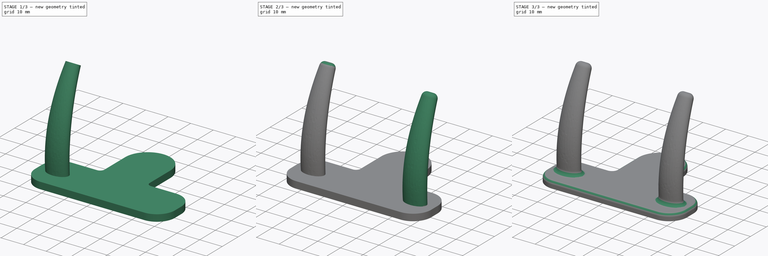
[diagram: build sequence overview — one tinted view per stage of 3, left to right]
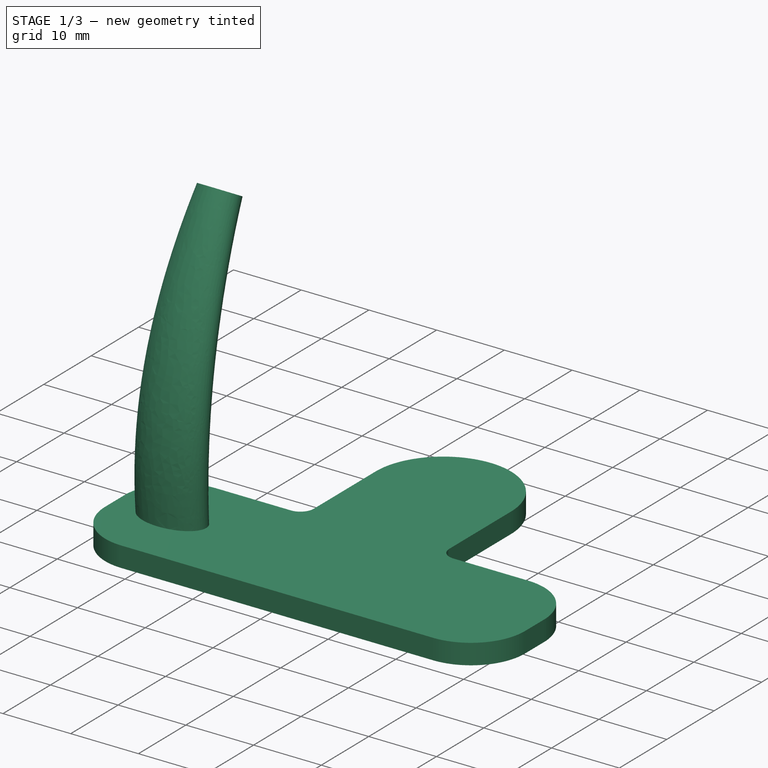
[diagram: stage 1 of 3 — iso view after this stage's code; geometry added in this stage tinted green]
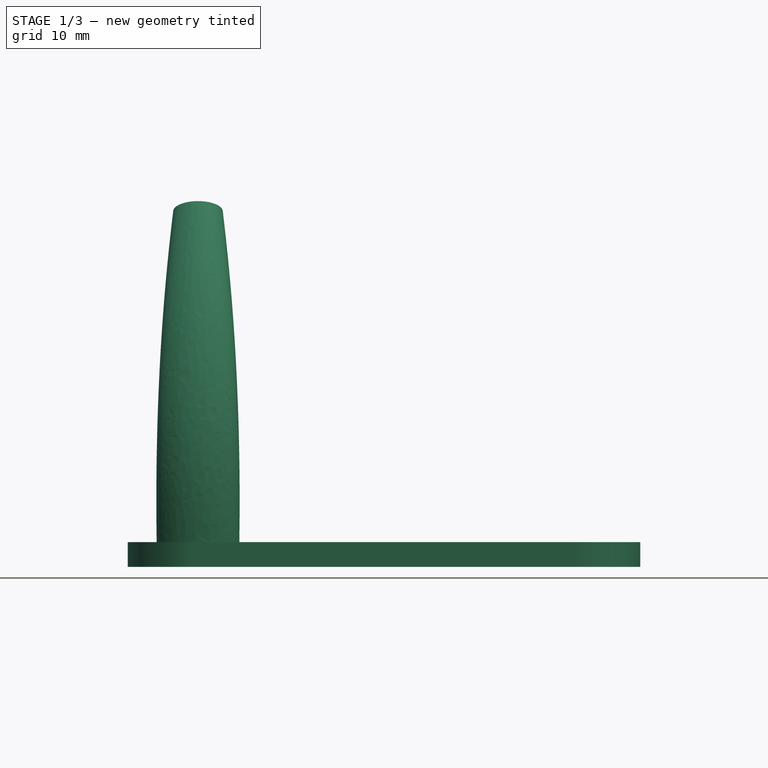
[diagram: stage 1 of 3 — front view after this stage's code; geometry added in this stage tinted green]
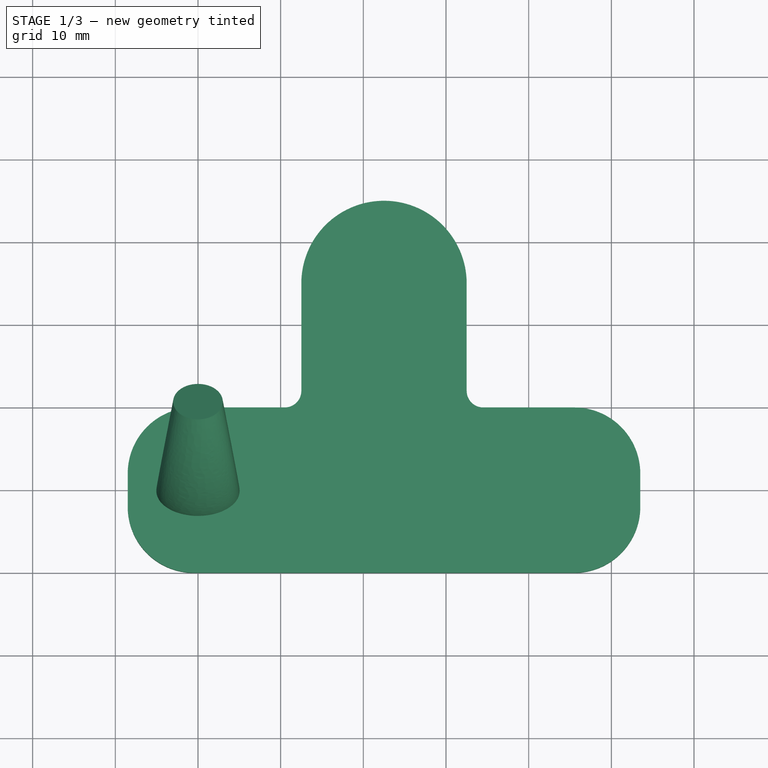
[diagram: stage 1 of 3 — top view after this stage's code; geometry added in this stage tinted green]
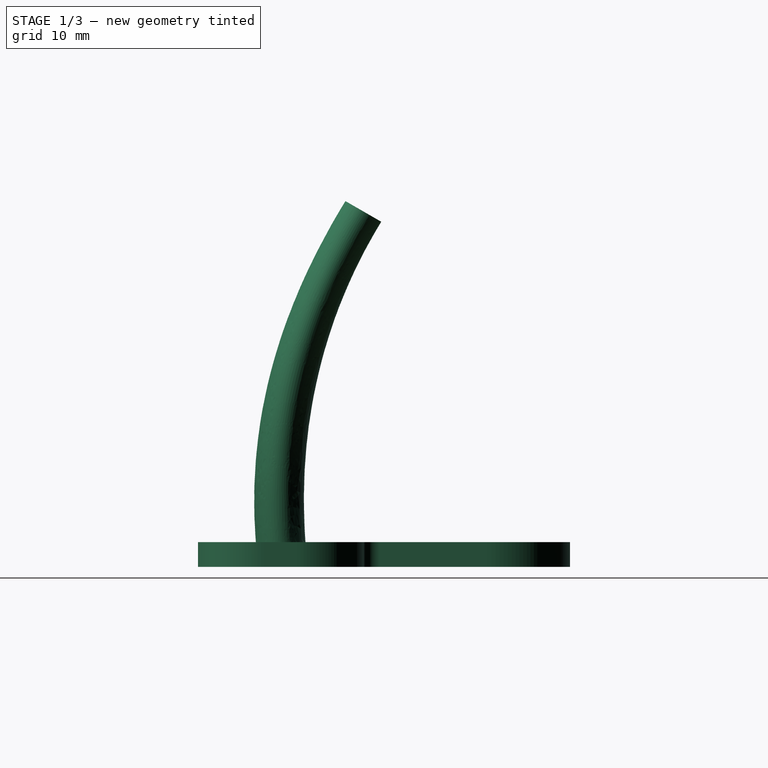
[diagram: stage 1 of 3 — right view after this stage's code; geometry added in this stage tinted green]
FCSTD DOCUMENT  (FreeCAD 0.16R)
Label: ShaverHook
License: All rights reserved
LicenseURL: http://en.wikipedia.org/wiki/All_rights_reserved
objects: Sketcher::SketchObject×4, PartDesign::Fillet×3, Part::Loft×1, Part::FeaturePython×1, PartDesign::Pad×1, Part::MultiFuse×1
note: 12 computed .brp shape members not serialized (recipe doc carries the construction recipe); baked Part::Feature solids carry a one-line shape summary decoded from their .brp

FEATURE [Sketcher::SketchObject] Sketch
  sketch-geometry (3):
    g0: Ellipse CenterX=0 CenterY=0 CenterZ=0 NormalX=0 NormalY=0 NormalZ=1 MajorRadius=5 MinorRadius=3 AngleXU=0
    g1: LineSegment [constr] StartX=5 StartY=0 StartZ=0 EndX=-5 EndY=0 EndZ=0
    g2: LineSegment [constr] StartX=0 StartY=3 StartZ=0 EndX=0 EndY=-3 EndZ=0
  constraints (6):
    c: InternalAlignment(g1,g0)
    c: InternalAlignment(g2,g0)
    c: Coincident(g0,g-1)
    c: Horizontal(g1)
    c: DistanceY(g2,g2) = 6
    c: DistanceX(g1,g1) = 10
FEATURE [Sketcher::SketchObject] Sketch001
  Placement = pos=(0,0,10) rot=(0,0,1;0rad)
  sketch-geometry (3):
    g0: Ellipse CenterX=0 CenterY=0 CenterZ=0 NormalX=0 NormalY=0 NormalZ=1 MajorRadius=5 MinorRadius=3 AngleXU=0
    g1: LineSegment [constr] StartX=5 StartY=0 StartZ=0 EndX=-5 EndY=0 EndZ=0
    g2: LineSegment [constr] StartX=0 StartY=3 StartZ=0 EndX=0 EndY=-3 EndZ=0
  constraints (6):
    c: InternalAlignment(g1,g0)
    c: InternalAlignment(g2,g0)
    c: Coincident(g0,g-1)
    c: Horizontal(g1)
    c: DistanceY(g2,g2) = 6
    c: DistanceX(g1,g1) = 10
FEATURE [Sketcher::SketchObject] Sketch002
  Placement = pos=(0,10,40) rot=(-1,0,0;0.523599rad)
  sketch-geometry (3):
    g0: Ellipse CenterX=0 CenterY=0 CenterZ=0 NormalX=0 NormalY=0 NormalZ=1 MajorRadius=3 MinorRadius=2.5 AngleXU=0
    g1: LineSegment [constr] StartX=3 StartY=0 StartZ=0 EndX=-3 EndY=0 EndZ=0
    g2: LineSegment [constr] StartX=0 StartY=2.5 StartZ=0 EndX=0 EndY=-2.5 EndZ=0
  constraints (6):
    c: InternalAlignment(g1,g0)
    c: InternalAlignment(g2,g0)
    c: Coincident(g0,g-1)
    c: Horizontal(g1)
    c: DistanceY(g2,g2) = 5
    c: DistanceX(g1,g1) = 6
FEATURE [Part::Loft] Loft
  Closed = false
  Ruled = false
  Sections = -> [Sketch,Sketch001,Sketch002]
  Solid = true
FEATURE [Sketcher::SketchObject] Sketch003
  Placement = pos=(22.5,0,0) rot=(0,0,1;0rad)
  sketch-geometry (14):
    g0: LineSegment StartX=31 StartY=2 StartZ=0 EndX=31 EndY=-2 EndZ=0
    g1: LineSegment StartX=23 StartY=-10 StartZ=0 EndX=-23 EndY=-10 EndZ=0
    g2: LineSegment StartX=-31 StartY=-2 StartZ=0 EndX=-31 EndY=2 EndZ=0
    g3: ArcOfCircle CenterX=-23 CenterY=2 CenterZ=0 NormalX=0 NormalY=0 NormalZ=1 Radius=8 StartAngle=1.5708 EndAngle=3.14159
    g4: ArcOfCircle CenterX=-23 CenterY=-2 CenterZ=0 NormalX=0 NormalY=0 NormalZ=1 Radius=8 StartAngle=3.14159 EndAngle=4.71239
    g5: ArcOfCircle CenterX=23 CenterY=-2 CenterZ=0 NormalX=0 NormalY=0 NormalZ=1 Radius=8 StartAngle=4.71239 EndAngle=6.28319
    g6: ArcOfCircle CenterX=23 CenterY=2 CenterZ=0 NormalX=0 NormalY=0 NormalZ=1 Radius=8 StartAngle=0 EndAngle=1.5708
    g7: LineSegment StartX=12 StartY=10 StartZ=0 EndX=23 EndY=10 EndZ=0
    g8: LineSegment StartX=-23 StartY=10 StartZ=0 EndX=-12 EndY=10 EndZ=0
    g9: LineSegment StartX=-10 StartY=12 StartZ=0 EndX=-10 EndY=25 EndZ=0
    g10: LineSegment StartX=10 StartY=12 StartZ=0 EndX=10 EndY=25 EndZ=0
    g11: ArcOfCircle CenterX=0 CenterY=25 CenterZ=0 NormalX=0 NormalY=0 NormalZ=1 Radius=10 StartAngle=6.28319 EndAngle=9.42478
    g12: ArcOfCircle CenterX=-12 CenterY=12 CenterZ=0 NormalX=0 NormalY=0 NormalZ=1 Radius=2 StartAngle=4.71239 EndAngle=6.28319
    g13: ArcOfCircle CenterX=12 CenterY=12 CenterZ=0 NormalX=0 NormalY=0 NormalZ=1 Radius=2 StartAngle=3.14159 EndAngle=4.71239
  constraints (37):
    c: Horizontal(g1)
    c: Vertical(g0)
    c: Tangent(g2,g3) = 1.5708
    c: Tangent(g1,g4) = 1.5708
    c: Tangent(g2,g4) = 1.5708
    c: Tangent(g0,g5) = 1.5708
    c: Tangent(g1,g5) = 1.5708
    c: Tangent(g0,g6) = 1.5708
    c: Equal(g5,g6)
    c: Equal(g6,g3)
    c: Equal(g3,g4)
    c: Radius(g4) = 8
    c: DistanceX(g2,g0) = 62
    c: DistanceY(g1,g-1) = 10
    c: Coincident(g7,g6)
    c: Symmetric(g2,g0,g-2)
    c: Tangent(g7,g6)
    c: Symmetric(g2,g2,g-1)
    c: Horizontal(g7)
    c: Coincident(g8,g3)
    c: Horizontal(g8)
    c: Tangent(g3,g8)
    c: Vertical(g9)
    c: Vertical(g10)
    c: Symmetric(g9,g10,g-2)
    c: DistanceX(g9,g10) = 20
    c: PointOnObject(g11,g-2)
    c: Coincident(g11,g9)
    c: Coincident(g11,g10)
    c: Tangent(g11,g9)
    c: Tangent(g8,g12) = -1.5708
    c: Tangent(g9,g12) = -1.5708
    c: Tangent(g7,g13) = -1.5708
    c: Tangent(g10,g13) = 1.5708
    c: DistanceY(g8,g9) = 15
    c: Equal(g12,g13)
    c: Radius(g12) = 2
FEATURE [PartDesign::Pad] Pad
  Length = 3
  Length2 = 100
  Placement = pos=(22.5,0,0) rot=(0,0,1;0rad)
  Reversed = true
  Sketch = -> Sketch003
  Type = 0
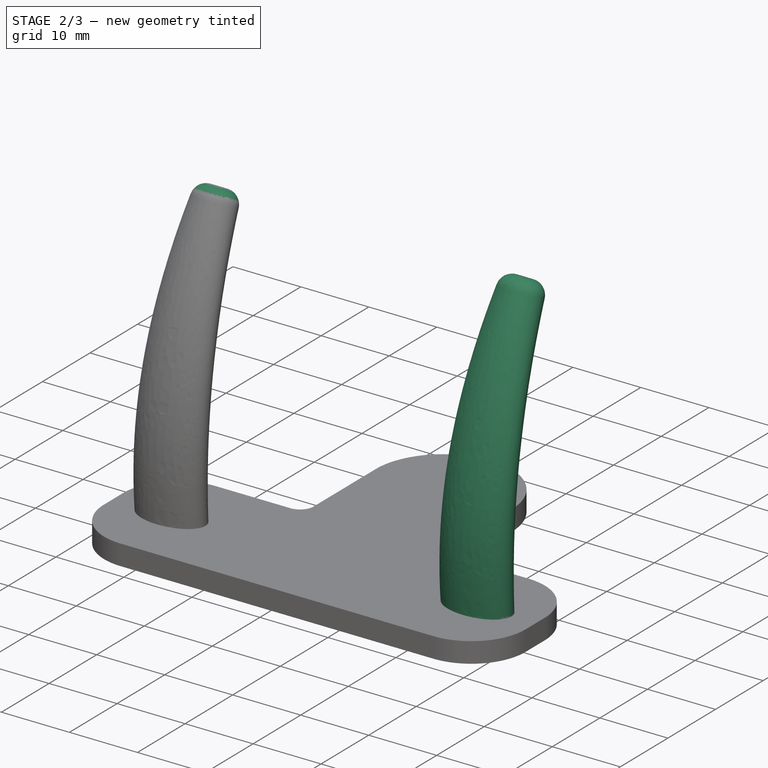
[diagram: stage 2 of 3 — iso view after this stage's code; geometry added in this stage tinted green]
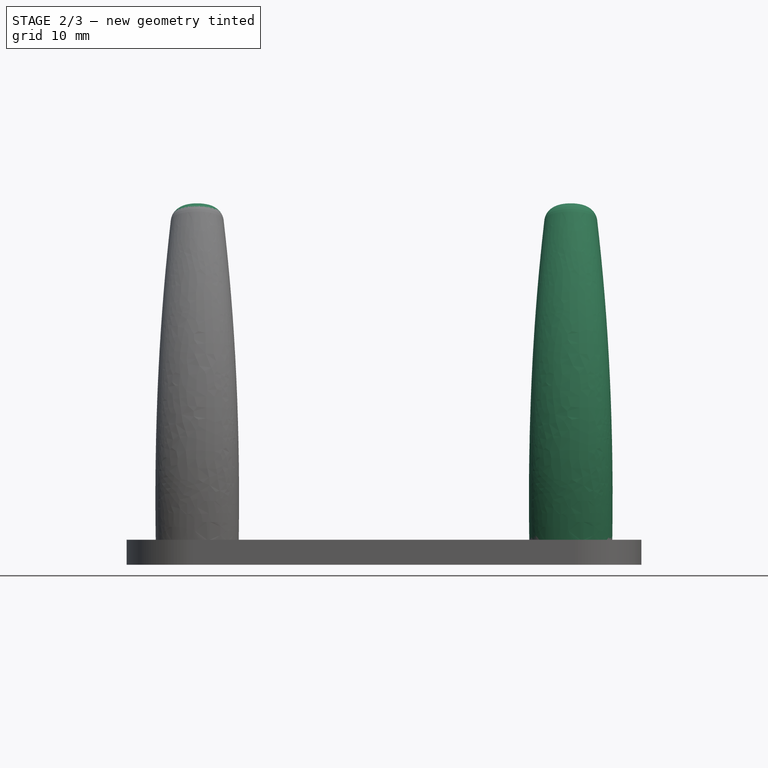
[diagram: stage 2 of 3 — front view after this stage's code; geometry added in this stage tinted green]
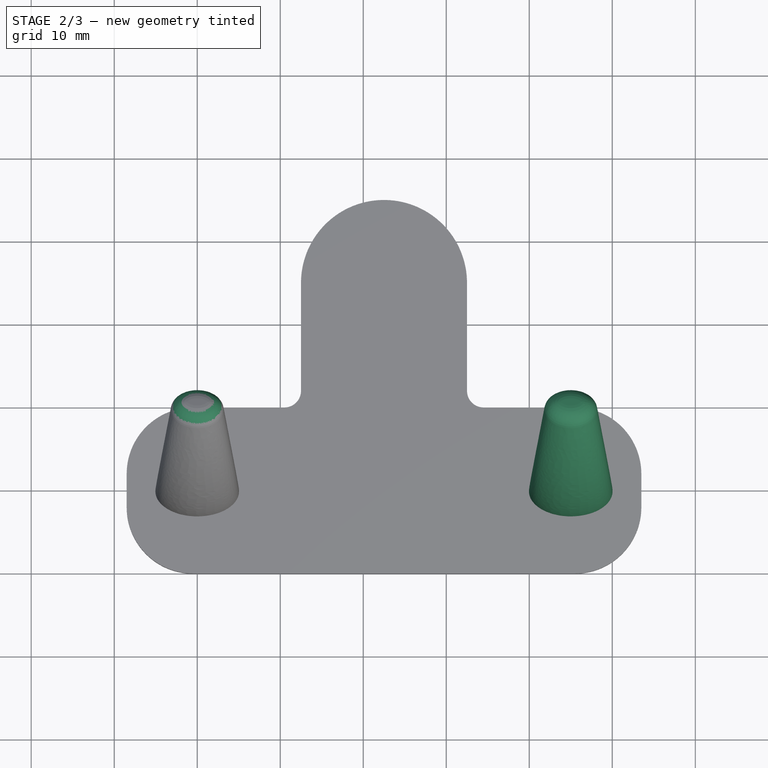
[diagram: stage 2 of 3 — top view after this stage's code; geometry added in this stage tinted green]
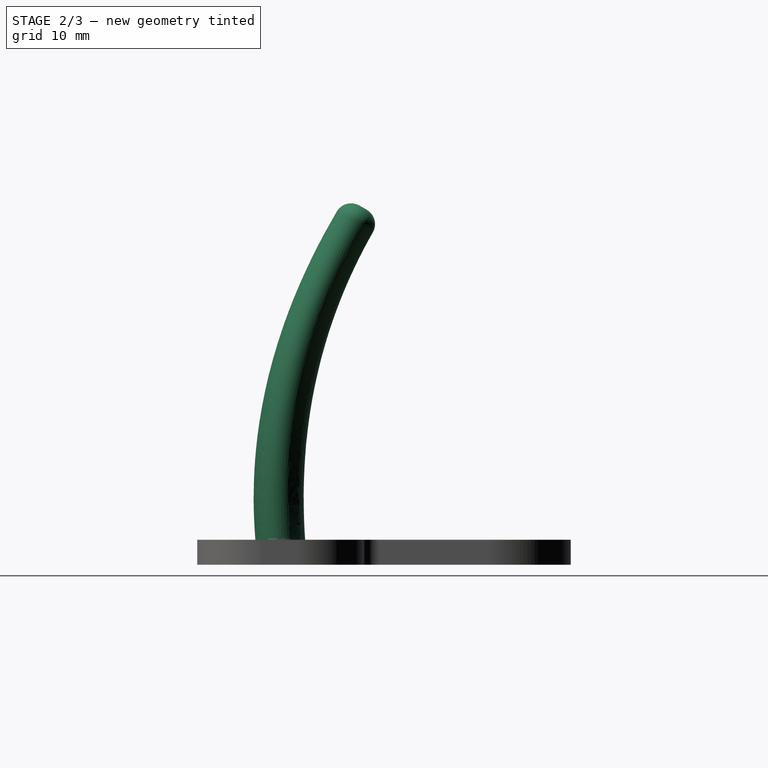
[diagram: stage 2 of 3 — right view after this stage's code; geometry added in this stage tinted green]
FEATURE [PartDesign::Fillet] Fillet
  Base = -> Loft [Edge3]
  Radius = 2
FEATURE [Part::FeaturePython] Clone  label="Clone of Fillet"  # Draft clone (typed FeaturePython)
  Objects = -> [Fillet]
  Placement = pos=(45,0,0) rot=(0,0,1;0rad)
  Scale = (1,1,1)
FEATURE [Part::MultiFuse] Fusion
  Shapes = -> [Fillet,Clone,Pad]
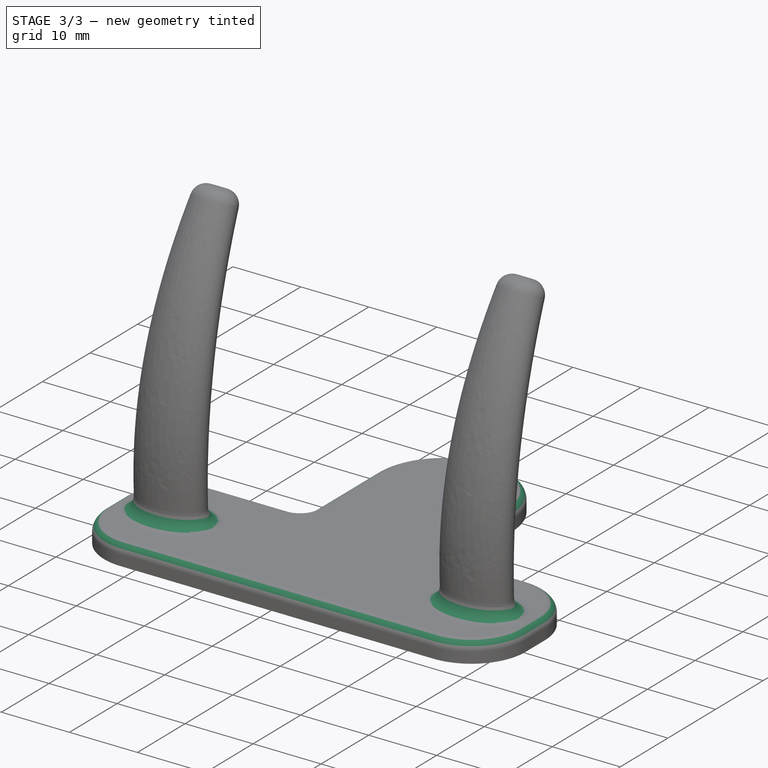
[diagram: stage 3 of 3 — iso view after this stage's code; geometry added in this stage tinted green]
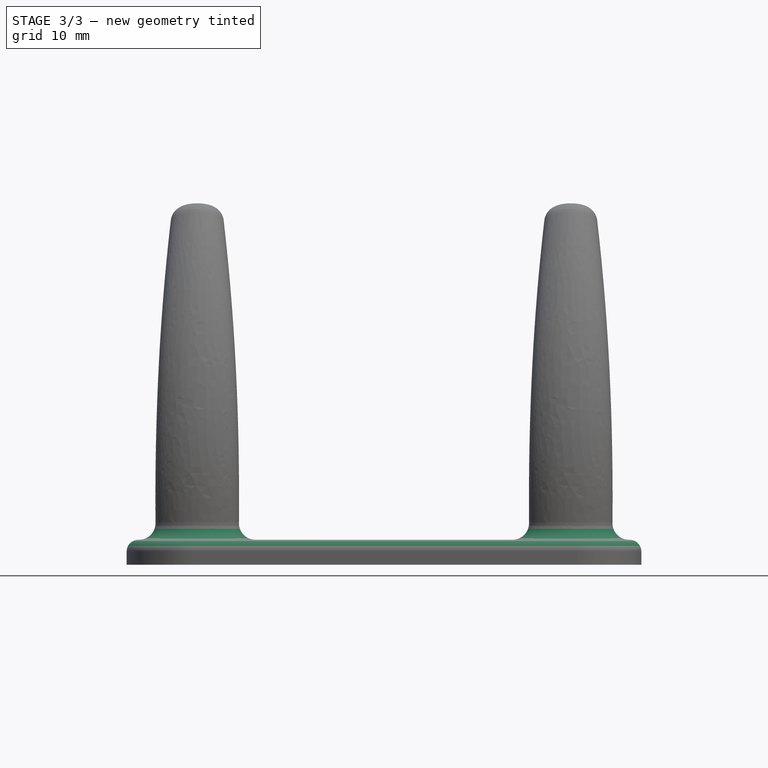
[diagram: stage 3 of 3 — front view after this stage's code; geometry added in this stage tinted green]
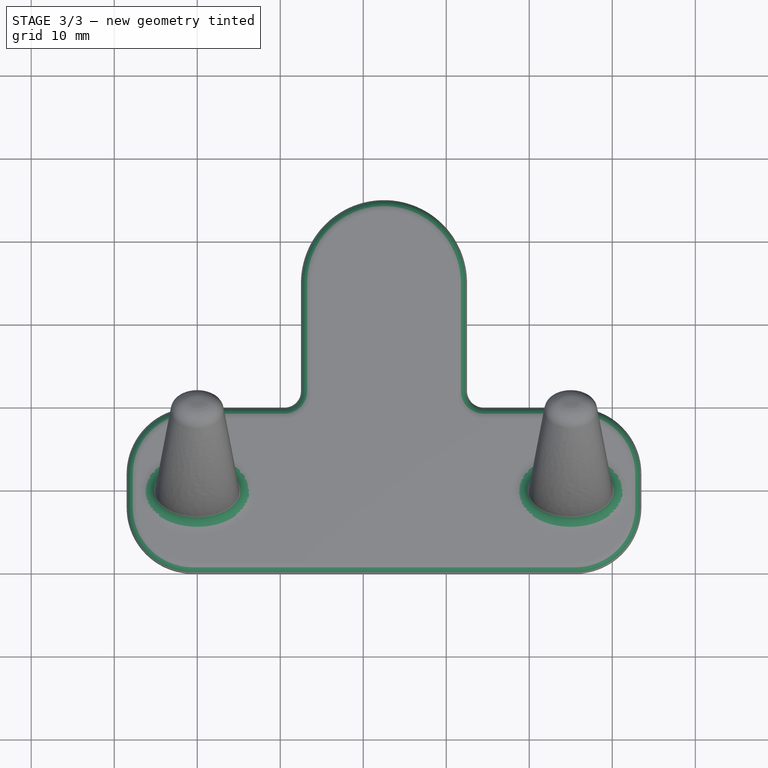
[diagram: stage 3 of 3 — top view after this stage's code; geometry added in this stage tinted green]
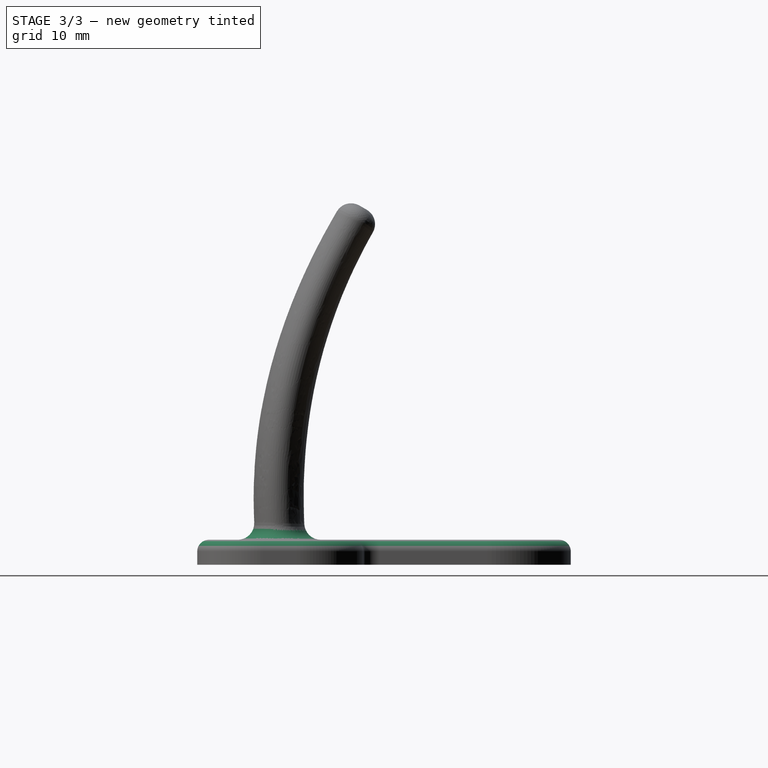
[diagram: stage 3 of 3 — right view after this stage's code; geometry added in this stage tinted green]
FEATURE [PartDesign::Fillet] Fillet001
  Base = -> Fusion [Edge22,Edge23]
  Radius = 2
FEATURE [PartDesign::Fillet] Fillet002
  Base = -> Fillet001 [Edge2,Edge3,Edge4,Edge5,Edge6,Edge7,Edge8,Edge9,Edge10,Edge11,Edge12,Edge13,Edge14,Edge15]
  Radius = 1.4
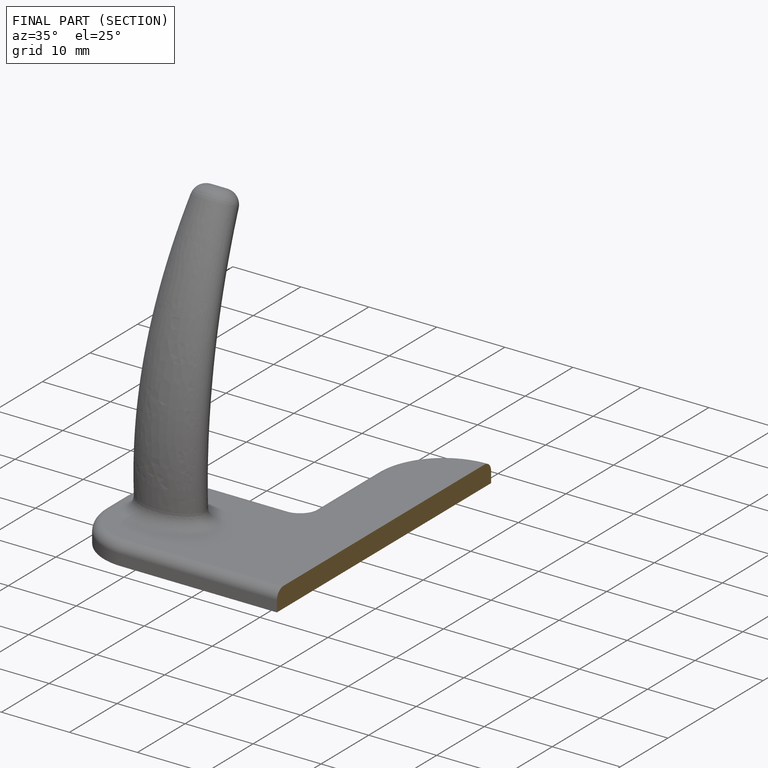
[diagram: finished part — half-section view (interior)]
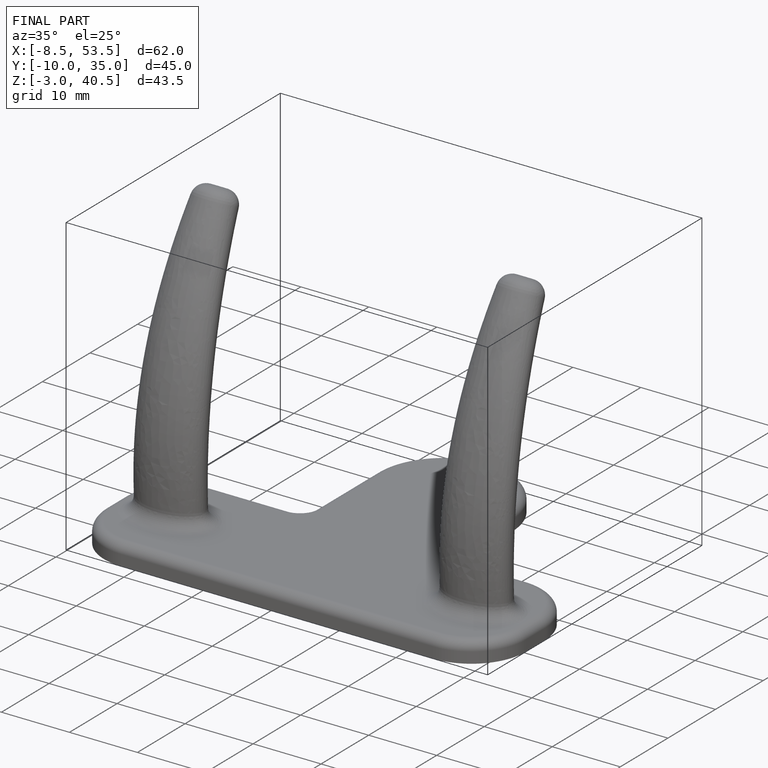
[diagram: finished part — iso view with bounding-box wireframe]
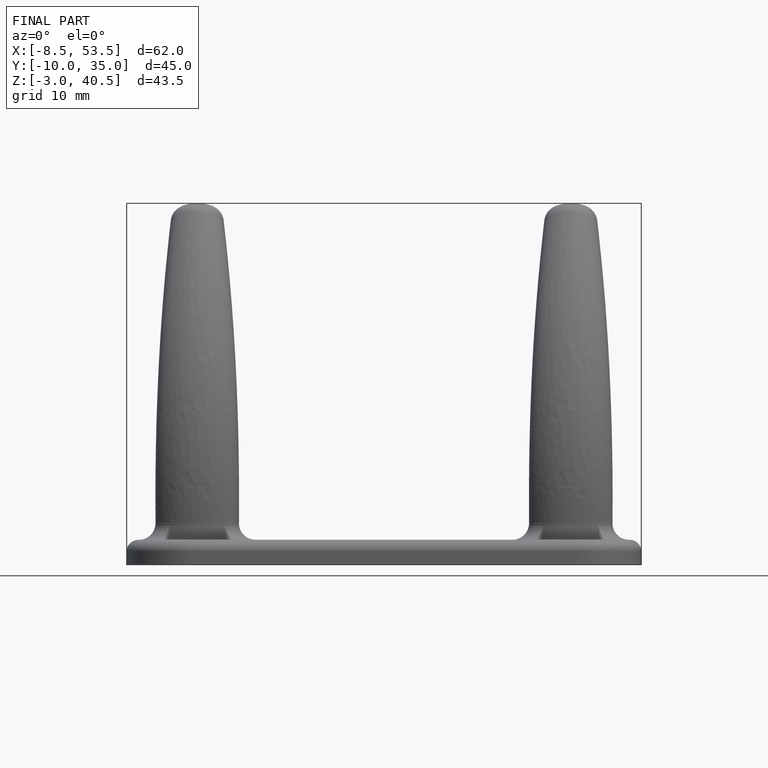
[diagram: finished part — front view with bounding-box wireframe]
